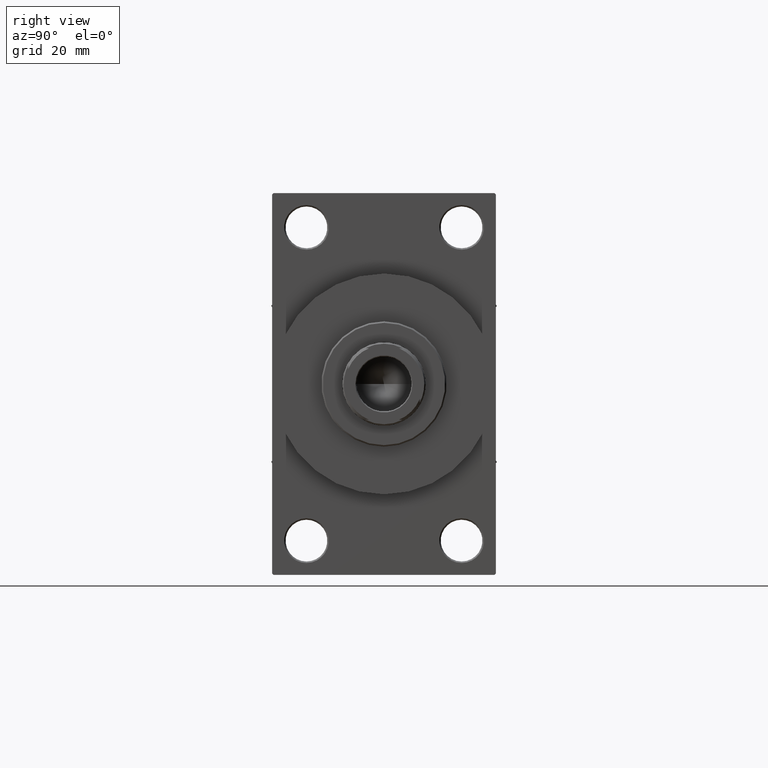
[diagram: clean part render]
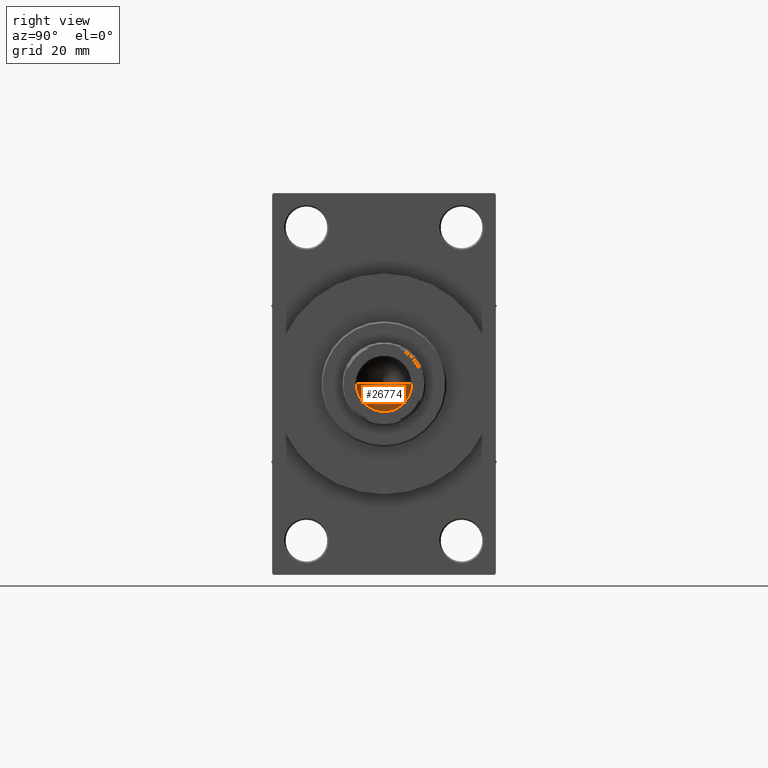
[diagram: same view with one face highlighted and labeled with its STEP entity id]
A machine part, right view. The second image highlights one B-rep face of the part: STEP entity #26774.
In plain terms, the highlighted conical surface has half-angle 59 deg.
Its self-contained STEP definition (entity closure, byte-faithful):
#2197 = DIRECTION ( 'NONE',  ( 1.000000000000000000, 0.000000000000000000, 0.000000000000000000 ) ) ;
#2899 = EDGE_CURVE ( 'NONE', #4481, #22769, #12210, .T. ) ;
#2910 = AXIS2_PLACEMENT_3D ( 'NONE', #39178, #9792, #2197 ) ;
#4481 = VERTEX_POINT ( 'NONE', #6762 ) ;
#4611 = ORIENTED_EDGE ( 'NONE', *, *, #2899, .T. ) ;
#6762 = CARTESIAN_POINT ( 'NONE',  ( 9.249999999999992895, 0.000000000000000000, 107.0000000000000142 ) ) ;
#9792 = DIRECTION ( 'NONE',  ( -0.000000000000000000, -0.000000000000000000, 1.000000000000000000 ) ) ;
#11735 = DIRECTION ( 'NONE',  ( -0.8571673007021117785, 1.049727191138617956E-16, 0.5150380749100550437 ) ) ;
#11969 = LINE ( 'NONE', #44458, #27949 ) ;
#12060 = CONICAL_SURFACE ( 'NONE', #2910, 9.249999999999992895, 1.029744258676653423 ) ;
#12210 = CIRCLE ( 'NONE', #42716, 9.249999999999992895 ) ;
#14540 = VECTOR ( 'NONE', #16435, 1000.000000000000000 ) ;
#16023 = DIRECTION ( 'NONE',  ( -0.000000000000000000, -0.000000000000000000, 1.000000000000000000 ) ) ;
#16188 = LINE ( 'NONE', #27409, #14540 ) ;
#16435 = DIRECTION ( 'NONE',  ( 0.8571673007021117785, 0.000000000000000000, 0.5150380749100550437 ) ) ;
#19920 = VERTEX_POINT ( 'NONE', #29473 ) ;
#22371 = EDGE_CURVE ( 'NONE', #19920, #22769, #11969, .T. ) ;
#22769 = VERTEX_POINT ( 'NONE', #40340 ) ;
#24597 = FACE_OUTER_BOUND ( 'NONE', #31804, .T. ) ;
#26626 = ORIENTED_EDGE ( 'NONE', *, *, #22371, .F. ) ;
#26774 = ADVANCED_FACE ( 'NONE', ( #24597 ), #12060, .F. ) ;
#27016 = DIRECTION ( 'NONE',  ( 1.000000000000000000, 0.000000000000000000, 0.000000000000000000 ) ) ;
#27409 = CARTESIAN_POINT ( 'NONE',  ( 9.249999999999992895, 0.000000000000000000, 107.0000000000000142 ) ) ;
#27949 = VECTOR ( 'NONE', #11735, 1000.000000000000000 ) ;
#29473 = CARTESIAN_POINT ( 'NONE',  ( -9.769621978240258809E-15, 0.000000000000000000, 101.4420392739950785 ) ) ;
#31804 = EDGE_LOOP ( 'NONE', ( #26626, #38017, #4611 ) ) ;
#34650 = CARTESIAN_POINT ( 'NONE',  ( 0.000000000000000000, 0.000000000000000000, 107.0000000000000142 ) ) ;
#36451 = EDGE_CURVE ( 'NONE', #19920, #4481, #16188, .T. ) ;
#38017 = ORIENTED_EDGE ( 'NONE', *, *, #36451, .T. ) ;
#39178 = CARTESIAN_POINT ( 'NONE',  ( 0.000000000000000000, 0.000000000000000000, 107.0000000000000142 ) ) ;
#40340 = CARTESIAN_POINT ( 'NONE',  ( -9.249999999999992895, 1.132798289211300712E-15, 107.0000000000000142 ) ) ;
#42716 = AXIS2_PLACEMENT_3D ( 'NONE', #34650, #16023, #27016 ) ;
#44458 = CARTESIAN_POINT ( 'NONE',  ( -9.249999999999992895, 1.132798289211300712E-15, 107.0000000000000142 ) ) ;